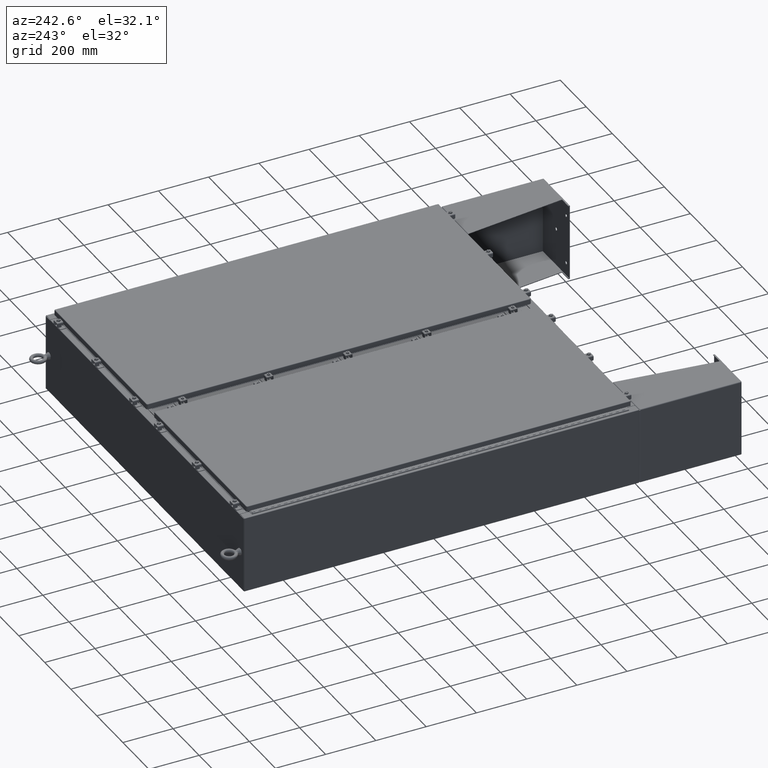
[diagram: clean part render]
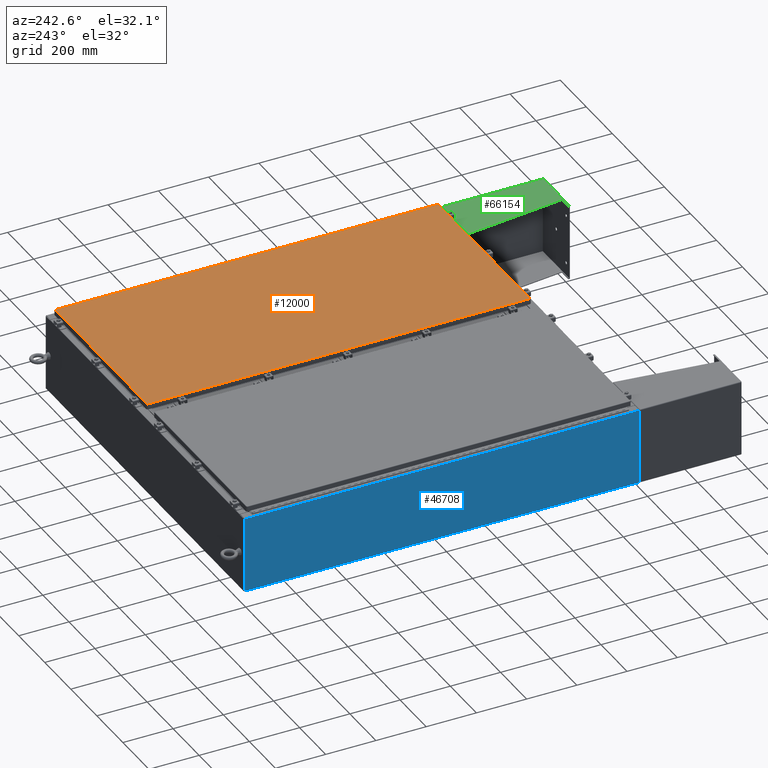
[diagram: same view with three faces highlighted in distinct colors, each labeled with its STEP entity id]
A machine part, auxiliary view with three faces highlighted in distinct colors.
Their STEP definitions:

[orange] entity #12000 — the highlighted planar face has unit normal (0, 0, -1).
#6034 = EDGE_CURVE ( 'NONE', #35503, #40854, #12140, .T. ) ;
#7935 = CARTESIAN_POINT ( 'NONE',  ( 13.91780000000000000, -30.01819999999999300, -2.048885995248197400E-016 ) ) ;
#10238 = CARTESIAN_POINT ( 'NONE',  ( -13.91780000000000000, 30.01820000000000400, -2.048885995248197400E-016 ) ) ;
#12000 = ADVANCED_FACE ( 'NONE', ( #28912 ), #68749, .F. ) ;
#12140 = LINE ( 'NONE', #65951, #67696 ) ;
#15085 = DIRECTION ( 'NONE',  ( -1.000000000000000000, 0.0000000000000000000, -0.0000000000000000000 ) ) ;
#15987 = CARTESIAN_POINT ( 'NONE',  ( 13.91780000000000000, -30.01819999999999300, -2.048885995248197400E-016 ) ) ;
#16775 = EDGE_CURVE ( 'NONE', #41118, #35503, #17021, .T. ) ;
#17021 = LINE ( 'NONE', #44274, #56617 ) ;
#18954 = CARTESIAN_POINT ( 'NONE',  ( -13.91780000000000000, -30.01819999999999700, 1.946441695485787500E-015 ) ) ;
#19283 = VERTEX_POINT ( 'NONE', #30850 ) ;
#23461 = DIRECTION ( 'NONE',  ( -1.000000000000000000, -0.0000000000000000000, -0.0000000000000000000 ) ) ;
#26241 = ORIENTED_EDGE ( 'NONE', *, *, #33607, .T. ) ;
#26801 = DIRECTION ( 'NONE',  ( 0.0000000000000000000, 1.000000000000000000, 0.0000000000000000000 ) ) ;
#28148 = ORIENTED_EDGE ( 'NONE', *, *, #16775, .T. ) ;
#28912 = FACE_OUTER_BOUND ( 'NONE', #54507, .T. ) ;
#30850 = CARTESIAN_POINT ( 'NONE',  ( 13.91780000000000000, 30.01820000000000700, 1.946441695485787500E-015 ) ) ;
#33607 = EDGE_CURVE ( 'NONE', #40854, #19283, #37260, .T. ) ;
#33651 = DIRECTION ( 'NONE',  ( 1.000000000000000000, -0.0000000000000000000, -0.0000000000000000000 ) ) ;
#35503 = VERTEX_POINT ( 'NONE', #18954 ) ;
#36236 = CARTESIAN_POINT ( 'NONE',  ( 0.0000000000000000000, 0.0000000000000000000, 0.0000000000000000000 ) ) ;
#37260 = LINE ( 'NONE', #15987, #64261 ) ;
#38628 = VECTOR ( 'NONE', #23461, 39.37007874015748100 ) ;
#40854 = VERTEX_POINT ( 'NONE', #7935 ) ;
#41118 = VERTEX_POINT ( 'NONE', #10238 ) ;
#42114 = EDGE_CURVE ( 'NONE', #19283, #41118, #52989, .T. ) ;
#44274 = CARTESIAN_POINT ( 'NONE',  ( -13.91780000000000000, 30.01820000000000400, -2.048885995248197400E-016 ) ) ;
#47379 = DIRECTION ( 'NONE',  ( 0.0000000000000000000, 0.0000000000000000000, -1.000000000000000000 ) ) ;
#49734 = DIRECTION ( 'NONE',  ( 0.0000000000000000000, -1.000000000000000000, 0.0000000000000000000 ) ) ;
#52989 = LINE ( 'NONE', #61130, #38628 ) ;
#54033 = ORIENTED_EDGE ( 'NONE', *, *, #6034, .T. ) ;
#54507 = EDGE_LOOP ( 'NONE', ( #54033, #26241, #68736, #28148 ) ) ;
#56617 = VECTOR ( 'NONE', #49734, 39.37007874015748100 ) ;
#61130 = CARTESIAN_POINT ( 'NONE',  ( 13.91780000000000000, 30.01820000000000700, 1.946441695485787500E-015 ) ) ;
#64261 = VECTOR ( 'NONE', #26801, 39.37007874015748100 ) ;
#65951 = CARTESIAN_POINT ( 'NONE',  ( -13.91780000000000000, -30.01819999999999700, 1.946441695485787500E-015 ) ) ;
#67696 = VECTOR ( 'NONE', #33651, 39.37007874015748100 ) ;
#68736 = ORIENTED_EDGE ( 'NONE', *, *, #42114, .T. ) ;
#68749 = PLANE ( 'NONE',  #69128 ) ;
#69128 = AXIS2_PLACEMENT_3D ( 'NONE', #36236, #47379, #15085 ) ;

[blue] entity #46708 — the highlighted planar face has unit normal (1, -0, 0).
#960 = AXIS2_PLACEMENT_3D ( 'NONE', #50427, #23557, #61220 ) ;
#1153 = VECTOR ( 'NONE', #52734, 39.37007874015748100 ) ;
#1786 = ORIENTED_EDGE ( 'NONE', *, *, #15917, .T. ) ;
#3148 = CARTESIAN_POINT ( 'NONE',  ( -30.00000000000006800, -30.92530000000000400, 11.83759999999998900 ) ) ;
#6504 = EDGE_CURVE ( 'NONE', #49240, #69732, #44063, .T. ) ;
#8941 = CARTESIAN_POINT ( 'NONE',  ( -30.00000000000005000, 30.92529999999999300, 11.83759999999998900 ) ) ;
#15047 = CARTESIAN_POINT ( 'NONE',  ( -30.00000000000001100, 30.92529999999999300, 0.01299999999999767800 ) ) ;
#15917 = EDGE_CURVE ( 'NONE', #49240, #64157, #50339, .T. ) ;
#16166 = CARTESIAN_POINT ( 'NONE',  ( -30.00000000000006800, -30.92530000000000400, 11.83759999999998900 ) ) ;
#16223 = ORIENTED_EDGE ( 'NONE', *, *, #6504, .F. ) ;
#18571 = LINE ( 'NONE', #16166, #45537 ) ;
#21562 = DIRECTION ( 'NONE',  ( 0.0000000000000000000, 1.000000000000000000, 0.0000000000000000000 ) ) ;
#23557 = DIRECTION ( 'NONE',  ( 1.000000000000000000, -1.172954818775253000E-031, 3.319545939341922800E-015 ) ) ;
#24648 = EDGE_CURVE ( 'NONE', #46901, #69732, #33533, .T. ) ;
#24661 = CARTESIAN_POINT ( 'NONE',  ( -30.00000000000001100, 30.92529999999999300, 0.01299999999999767500 ) ) ;
#28320 = ORIENTED_EDGE ( 'NONE', *, *, #40327, .T. ) ;
#29982 = DIRECTION ( 'NONE',  ( -3.319545939341922800E-015, 3.688384377046583100E-016, 1.000000000000000000 ) ) ;
#31825 = VECTOR ( 'NONE', #67149, 39.37007874015748100 ) ;
#32683 = EDGE_LOOP ( 'NONE', ( #28320, #42191, #16223, #1786 ) ) ;
#33533 = LINE ( 'NONE', #34862, #31825 ) ;
#34862 = CARTESIAN_POINT ( 'NONE',  ( -30.00000000000001100, 30.92529999999999300, -9.984719183626928000E-014 ) ) ;
#35395 = CARTESIAN_POINT ( 'NONE',  ( -30.00000000000001100, -30.92530000000000400, -8.844075249872141400E-014 ) ) ;
#40327 = EDGE_CURVE ( 'NONE', #64157, #46901, #18571, .T. ) ;
#42191 = ORIENTED_EDGE ( 'NONE', *, *, #24648, .T. ) ;
#44063 = LINE ( 'NONE', #15047, #1153 ) ;
#45537 = VECTOR ( 'NONE', #21562, 39.37007874015748100 ) ;
#46708 = ADVANCED_FACE ( 'NONE', ( #61991 ), #55805, .F. ) ;
#46901 = VERTEX_POINT ( 'NONE', #8941 ) ;
#47411 = CARTESIAN_POINT ( 'NONE',  ( -30.00000000000001100, -30.92530000000000400, 0.01299999999999767800 ) ) ;
#48617 = VECTOR ( 'NONE', #29982, 39.37007874015748100 ) ;
#49240 = VERTEX_POINT ( 'NONE', #47411 ) ;
#50339 = LINE ( 'NONE', #35395, #48617 ) ;
#50427 = CARTESIAN_POINT ( 'NONE',  ( -30.00000000000001100, 3.518864456325760100E-030, -9.984719183626928000E-014 ) ) ;
#52734 = DIRECTION ( 'NONE',  ( 1.172954818775253000E-031, 1.000000000000000000, 3.834901571730062800E-046 ) ) ;
#55805 = PLANE ( 'NONE',  #960 ) ;
#61220 = DIRECTION ( 'NONE',  ( 3.319545939341922800E-015, 0.0000000000000000000, -1.000000000000000000 ) ) ;
#61991 = FACE_OUTER_BOUND ( 'NONE', #32683, .T. ) ;
#64157 = VERTEX_POINT ( 'NONE', #3148 ) ;
#67149 = DIRECTION ( 'NONE',  ( 3.319545939341922800E-015, 0.0000000000000000000, -1.000000000000000000 ) ) ;
#69732 = VERTEX_POINT ( 'NONE', #24661 ) ;

[green] entity #66154 — the highlighted planar face has unit normal (0, 0, -1).
#840 = VERTEX_POINT ( 'NONE', #28361 ) ;
#1524 = ORIENTED_EDGE ( 'NONE', *, *, #42464, .T. ) ;
#2253 = ORIENTED_EDGE ( 'NONE', *, *, #56281, .T. ) ;
#3788 = ORIENTED_EDGE ( 'NONE', *, *, #50101, .F. ) ;
#3961 = CARTESIAN_POINT ( 'NONE',  ( 5.999999999999999100, -8.000000000000000000, 0.03900000000001671600 ) ) ;
#4086 = VECTOR ( 'NONE', #69533, 39.37007874015748100 ) ;
#5359 = EDGE_CURVE ( 'NONE', #36212, #63216, #54336, .T. ) ;
#5485 = LINE ( 'NONE', #38552, #30689 ) ;
#7065 = DIRECTION ( 'NONE',  ( 0.0000000000000000000, 0.0000000000000000000, 1.000000000000000000 ) ) ;
#9392 = DIRECTION ( 'NONE',  ( -0.0000000000000000000, -1.000000000000000000, 0.0000000000000000000 ) ) ;
#11481 = EDGE_CURVE ( 'NONE', #21584, #40582, #16364, .T. ) ;
#11909 = CARTESIAN_POINT ( 'NONE',  ( 6.000000000000029300, -7.749999999999999100, 8.001000000000017200 ) ) ;
#15114 = DIRECTION ( 'NONE',  ( -1.000000000000000000, 0.0000000000000000000, 3.550958521948298200E-015 ) ) ;
#16364 = LINE ( 'NONE', #3961, #30643 ) ;
#17774 = LINE ( 'NONE', #60439, #59051 ) ;
#21584 = VERTEX_POINT ( 'NONE', #24944 ) ;
#22219 = AXIS2_PLACEMENT_3D ( 'NONE', #41471, #15114, #52795 ) ;
#22757 = DIRECTION ( 'NONE',  ( 0.0000000000000000000, -1.000000000000000000, 0.0000000000000000000 ) ) ;
#24214 = CARTESIAN_POINT ( 'NONE',  ( 6.000000000000029300, -7.999999999999999100, 8.001000000000017200 ) ) ;
#24944 = CARTESIAN_POINT ( 'NONE',  ( 6.000000000000016000, 7.856999999999996700, 0.03900000000001671600 ) ) ;
#25301 = VERTEX_POINT ( 'NONE', #24214 ) ;
#28361 = CARTESIAN_POINT ( 'NONE',  ( 6.000000000000016000, 7.856999999999995800, 8.001000000000017200 ) ) ;
#28792 = EDGE_LOOP ( 'NONE', ( #35195, #60380, #1524, #58618, #2253, #3788 ) ) ;
#30643 = VECTOR ( 'NONE', #9392, 39.37007874015748100 ) ;
#30689 = VECTOR ( 'NONE', #60003, 39.37007874015748100 ) ;
#34624 = LINE ( 'NONE', #60722, #63320 ) ;
#34662 = EDGE_CURVE ( 'NONE', #36212, #25301, #17774, .T. ) ;
#35195 = ORIENTED_EDGE ( 'NONE', *, *, #5359, .F. ) ;
#36212 = VERTEX_POINT ( 'NONE', #62680 ) ;
#37555 = CARTESIAN_POINT ( 'NONE',  ( 6.000000000000000900, -8.000000000000001800, 0.03899999999999890400 ) ) ;
#38552 = CARTESIAN_POINT ( 'NONE',  ( 6.000000000000022200, -7.749999999999999100, 6.052216497445952500 ) ) ;
#40582 = VERTEX_POINT ( 'NONE', #37555 ) ;
#41471 = CARTESIAN_POINT ( 'NONE',  ( 6.000000000000029300, -7.999999999999999100, 8.001000000000017200 ) ) ;
#42310 = FACE_OUTER_BOUND ( 'NONE', #28792, .T. ) ;
#42464 = EDGE_CURVE ( 'NONE', #25301, #40582, #61365, .T. ) ;
#47398 = PLANE ( 'NONE',  #22219 ) ;
#49572 = DIRECTION ( 'NONE',  ( -3.550958521948298200E-015, -0.0000000000000000000, -1.000000000000000000 ) ) ;
#50101 = EDGE_CURVE ( 'NONE', #63216, #840, #5485, .T. ) ;
#50739 = CARTESIAN_POINT ( 'NONE',  ( 6.000000000000021300, -7.749999999999999100, 6.052216497445952500 ) ) ;
#52795 = DIRECTION ( 'NONE',  ( 3.550958521948298200E-015, 0.0000000000000000000, 1.000000000000000000 ) ) ;
#54336 = LINE ( 'NONE', #11909, #68634 ) ;
#56281 = EDGE_CURVE ( 'NONE', #21584, #840, #34624, .T. ) ;
#58618 = ORIENTED_EDGE ( 'NONE', *, *, #11481, .F. ) ;
#59051 = VECTOR ( 'NONE', #22757, 39.37007874015748100 ) ;
#60003 = DIRECTION ( 'NONE',  ( 4.399772607369798900E-016, 0.9922942345449394800, 0.1239038017531047700 ) ) ;
#60380 = ORIENTED_EDGE ( 'NONE', *, *, #34662, .T. ) ;
#60439 = CARTESIAN_POINT ( 'NONE',  ( 6.000000000000029300, -7.999999999999999100, 8.001000000000017200 ) ) ;
#60722 = CARTESIAN_POINT ( 'NONE',  ( 6.000000000000016000, 7.856999999999994000, 0.03900000000001780500 ) ) ;
#61365 = LINE ( 'NONE', #63681, #4086 ) ;
#62680 = CARTESIAN_POINT ( 'NONE',  ( 6.000000000000029300, -7.749999999999999100, 8.001000000000033200 ) ) ;
#63216 = VERTEX_POINT ( 'NONE', #50739 ) ;
#63320 = VECTOR ( 'NONE', #7065, 39.37007874015748100 ) ;
#63681 = CARTESIAN_POINT ( 'NONE',  ( 6.000000000000029300, -7.999999999999999100, 8.001000000000017200 ) ) ;
#66154 = ADVANCED_FACE ( 'NONE', ( #42310 ), #47398, .F. ) ;
#68634 = VECTOR ( 'NONE', #49572, 39.37007874015748100 ) ;
#69533 = DIRECTION ( 'NONE',  ( -3.550958521948298200E-015, -2.731506555344845100E-016, -1.000000000000000000 ) ) ;